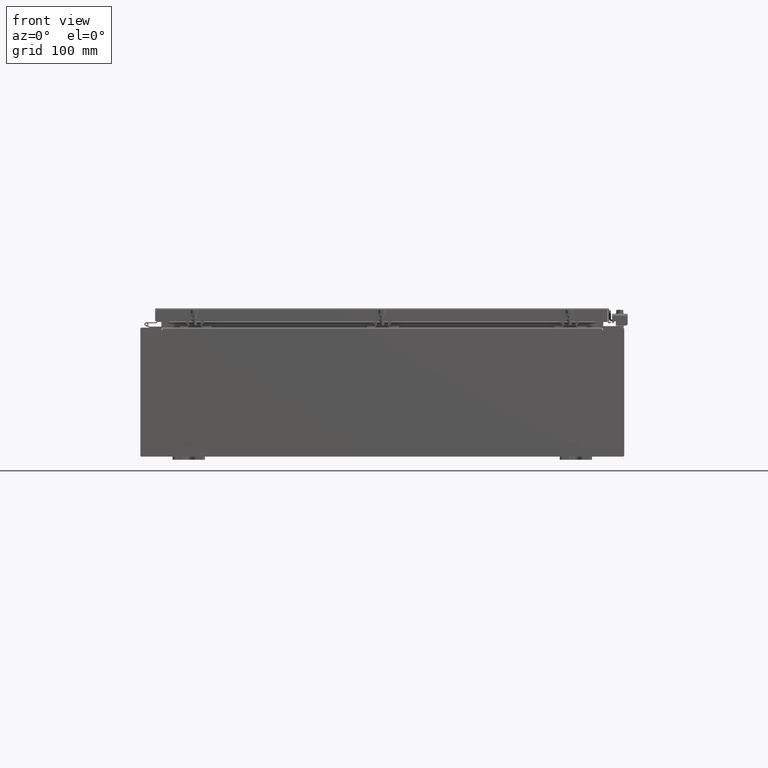
[diagram: clean part render]
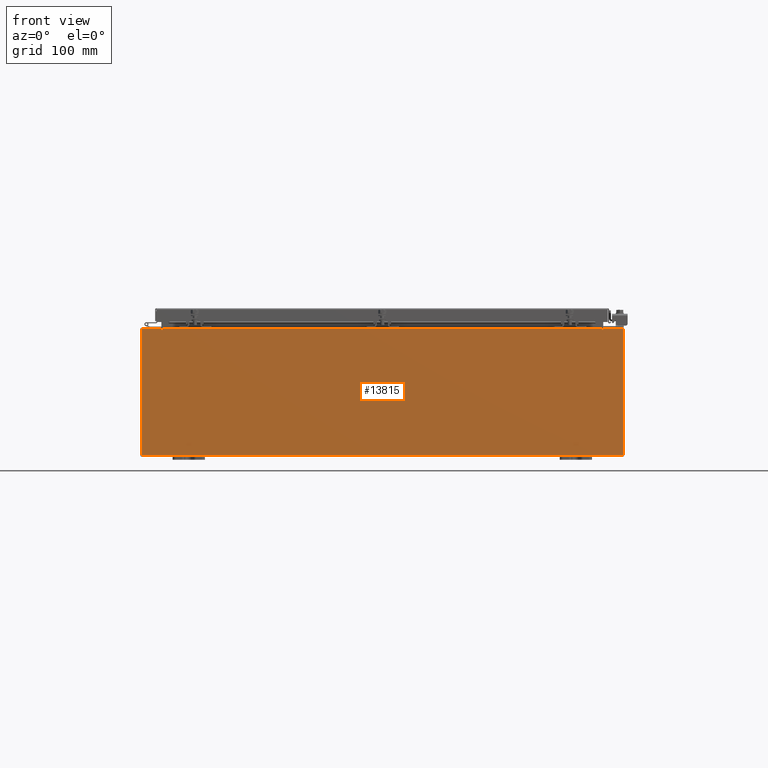
[diagram: same view with one face highlighted and labeled with its STEP entity id]
A machine part, front view. The second image highlights one B-rep face of the part: STEP entity #13815.
In plain terms, the highlighted planar face has unit normal (-0, 1, -0).
Its self-contained STEP definition (entity closure, byte-faithful):
#432 = VERTEX_POINT ( 'NONE', #34813 ) ;
#537 = CARTESIAN_POINT ( 'NONE',  ( 13.63720000000000400, 0.0000000000000000000, 3.874949999999999700 ) ) ;
#1525 = CARTESIAN_POINT ( 'NONE',  ( -13.63719999999999600, -0.0000000000000000000, 0.0000000000000000000 ) ) ;
#1815 = ORIENTED_EDGE ( 'NONE', *, *, #30487, .F. ) ;
#2160 = DIRECTION ( 'NONE',  ( 0.0000000000000000000, -0.0000000000000000000, -1.000000000000000000 ) ) ;
#2575 = LINE ( 'NONE', #10133, #32349 ) ;
#2901 = CARTESIAN_POINT ( 'NONE',  ( -14.92529999999999800, 0.0000000000000000000, 3.925299999999999600 ) ) ;
#3558 = CIRCLE ( 'NONE', #13263, 0.01867499999999949400 ) ;
#3827 = EDGE_CURVE ( 'NONE', #19924, #8920, #6017, .T. ) ;
#4027 = FACE_OUTER_BOUND ( 'NONE', #29703, .T. ) ;
#5618 = VECTOR ( 'NONE', #18746, 39.37007874015748100 ) ;
#6017 = LINE ( 'NONE', #20169, #7898 ) ;
#6046 = VECTOR ( 'NONE', #38392, 39.37007874015748100 ) ;
#6983 = CARTESIAN_POINT ( 'NONE',  ( 13.67455000000000400, 0.0000000000000000000, 3.925299999999999600 ) ) ;
#7187 = DIRECTION ( 'NONE',  ( 1.000000000000000000, 0.0000000000000000000, 0.0000000000000000000 ) ) ;
#7898 = VECTOR ( 'NONE', #15827, 39.37007874015748100 ) ;
#8173 = VECTOR ( 'NONE', #23099, 39.37007874015748100 ) ;
#8356 = CARTESIAN_POINT ( 'NONE',  ( -13.63719999999999800, 1.024442997624098700E-016, 3.912299999999999700 ) ) ;
#8696 = LINE ( 'NONE', #26123, #30517 ) ;
#8920 = VERTEX_POINT ( 'NONE', #13791 ) ;
#9029 = VERTEX_POINT ( 'NONE', #17321 ) ;
#9052 = EDGE_CURVE ( 'NONE', #9029, #26276, #3558, .T. ) ;
#9077 = AXIS2_PLACEMENT_3D ( 'NONE', #11703, #32505, #14671 ) ;
#9332 = EDGE_CURVE ( 'NONE', #10655, #20469, #18868, .T. ) ;
#9841 = EDGE_CURVE ( 'NONE', #17331, #19924, #10951, .T. ) ;
#10133 = CARTESIAN_POINT ( 'NONE',  ( -14.92529999999999800, 0.0000000000000000000, 3.925299999999999600 ) ) ;
#10579 = ORIENTED_EDGE ( 'NONE', *, *, #14504, .T. ) ;
#10655 = VERTEX_POINT ( 'NONE', #6983 ) ;
#10951 = CIRCLE ( 'NONE', #9077, 0.01867499999999949400 ) ;
#11703 = CARTESIAN_POINT ( 'NONE',  ( -13.65587499999999600, 0.0000000000000000000, 3.874949999999999700 ) ) ;
#12123 = DIRECTION ( 'NONE',  ( 0.0000000000000000000, 0.0000000000000000000, -1.000000000000000000 ) ) ;
#12450 = ORIENTED_EDGE ( 'NONE', *, *, #24260, .F. ) ;
#13263 = AXIS2_PLACEMENT_3D ( 'NONE', #24832, #31358, #12123 ) ;
#13663 = CARTESIAN_POINT ( 'NONE',  ( 13.63720000000000400, 0.0000000000000000000, 0.0000000000000000000 ) ) ;
#13724 = ORIENTED_EDGE ( 'NONE', *, *, #30601, .T. ) ;
#13791 = CARTESIAN_POINT ( 'NONE',  ( -13.67454999999999500, 0.0000000000000000000, 3.925299999999999600 ) ) ;
#13815 = ADVANCED_FACE ( 'NONE', ( #4027 ), #37815, .F. ) ;
#13887 = AXIS2_PLACEMENT_3D ( 'NONE', #34698, #19957, #2160 ) ;
#14271 = ORIENTED_EDGE ( 'NONE', *, *, #9841, .F. ) ;
#14318 = DIRECTION ( 'NONE',  ( -0.0000000000000000000, -0.0000000000000000000, 1.000000000000000000 ) ) ;
#14489 = ORIENTED_EDGE ( 'NONE', *, *, #22409, .T. ) ;
#14504 = EDGE_CURVE ( 'NONE', #17136, #28407, #30936, .T. ) ;
#14671 = DIRECTION ( 'NONE',  ( 0.0000000000000000000, 0.0000000000000000000, -1.000000000000000000 ) ) ;
#15827 = DIRECTION ( 'NONE',  ( 0.0000000000000000000, 0.0000000000000000000, 1.000000000000000000 ) ) ;
#16288 = DIRECTION ( 'NONE',  ( 0.0000000000000000000, 0.0000000000000000000, -1.000000000000000000 ) ) ;
#16304 = CARTESIAN_POINT ( 'NONE',  ( 14.92530000000000200, 0.0000000000000000000, -3.925299999999999600 ) ) ;
#16593 = DIRECTION ( 'NONE',  ( 0.0000000000000000000, 0.0000000000000000000, 1.000000000000000000 ) ) ;
#17136 = VERTEX_POINT ( 'NONE', #33864 ) ;
#17168 = CARTESIAN_POINT ( 'NONE',  ( -13.67454999999999500, 0.0000000000000000000, 3.874949999999999700 ) ) ;
#17321 = CARTESIAN_POINT ( 'NONE',  ( 13.67455000000000200, 0.0000000000000000000, 3.874949999999999700 ) ) ;
#17331 = VERTEX_POINT ( 'NONE', #37786 ) ;
#18326 = EDGE_CURVE ( 'NONE', #20469, #20995, #37257, .T. ) ;
#18746 = DIRECTION ( 'NONE',  ( 0.0000000000000000000, 0.0000000000000000000, -1.000000000000000000 ) ) ;
#18868 = LINE ( 'NONE', #2901, #25839 ) ;
#19627 = CARTESIAN_POINT ( 'NONE',  ( 14.92530000000000200, 0.0000000000000000000, 3.925299999999999600 ) ) ;
#19924 = VERTEX_POINT ( 'NONE', #17168 ) ;
#19957 = DIRECTION ( 'NONE',  ( 0.0000000000000000000, -1.000000000000000000, 0.0000000000000000000 ) ) ;
#20069 = ORIENTED_EDGE ( 'NONE', *, *, #3827, .F. ) ;
#20169 = CARTESIAN_POINT ( 'NONE',  ( -13.67454999999999500, -0.0000000000000000000, 0.0000000000000000000 ) ) ;
#20469 = VERTEX_POINT ( 'NONE', #19627 ) ;
#20673 = DIRECTION ( 'NONE',  ( 1.000000000000000000, 0.0000000000000000000, 0.0000000000000000000 ) ) ;
#20677 = VECTOR ( 'NONE', #16593, 39.37007874015748100 ) ;
#20995 = VERTEX_POINT ( 'NONE', #16304 ) ;
#21136 = VECTOR ( 'NONE', #14318, 39.37007874015748100 ) ;
#21156 = CARTESIAN_POINT ( 'NONE',  ( -14.92529999999999800, 0.0000000000000000000, 3.925299999999999600 ) ) ;
#21611 = CARTESIAN_POINT ( 'NONE',  ( 14.92530000000000200, 0.0000000000000000000, 3.925299999999999600 ) ) ;
#21863 = LINE ( 'NONE', #1525, #29775 ) ;
#22248 = ORIENTED_EDGE ( 'NONE', *, *, #30375, .T. ) ;
#22409 = EDGE_CURVE ( 'NONE', #20995, #17136, #29740, .T. ) ;
#23099 = DIRECTION ( 'NONE',  ( 1.000000000000000000, 0.0000000000000000000, 0.0000000000000000000 ) ) ;
#23352 = ORIENTED_EDGE ( 'NONE', *, *, #9332, .T. ) ;
#24260 = EDGE_CURVE ( 'NONE', #10655, #9029, #8696, .T. ) ;
#24832 = CARTESIAN_POINT ( 'NONE',  ( 13.65587500000000200, 0.0000000000000000000, 3.874949999999999700 ) ) ;
#24850 = LINE ( 'NONE', #8356, #8173 ) ;
#25839 = VECTOR ( 'NONE', #20673, 39.37007874015748100 ) ;
#26123 = CARTESIAN_POINT ( 'NONE',  ( 13.67454999999983300, -0.0000000000000000000, -5.935537951421816200E-013 ) ) ;
#26248 = ORIENTED_EDGE ( 'NONE', *, *, #18326, .T. ) ;
#26276 = VERTEX_POINT ( 'NONE', #537 ) ;
#27362 = CARTESIAN_POINT ( 'NONE',  ( 13.63720000000000400, 0.0000000000000000000, 3.912299999999999700 ) ) ;
#27436 = VERTEX_POINT ( 'NONE', #27362 ) ;
#27492 = ORIENTED_EDGE ( 'NONE', *, *, #34048, .F. ) ;
#28407 = VERTEX_POINT ( 'NONE', #21156 ) ;
#29108 = DIRECTION ( 'NONE',  ( -4.340572780400004900E-014, 0.0000000000000000000, -1.000000000000000000 ) ) ;
#29703 = EDGE_LOOP ( 'NONE', ( #20069, #14271, #27492, #13724, #1815, #33504, #12450, #23352, #26248, #14489, #10579, #22248 ) ) ;
#29740 = LINE ( 'NONE', #38266, #6046 ) ;
#29775 = VECTOR ( 'NONE', #16288, 39.37007874015748100 ) ;
#30375 = EDGE_CURVE ( 'NONE', #28407, #8920, #2575, .T. ) ;
#30487 = EDGE_CURVE ( 'NONE', #26276, #27436, #36532, .T. ) ;
#30517 = VECTOR ( 'NONE', #29108, 39.37007874015748100 ) ;
#30601 = EDGE_CURVE ( 'NONE', #432, #27436, #24850, .T. ) ;
#30936 = LINE ( 'NONE', #35152, #21136 ) ;
#31358 = DIRECTION ( 'NONE',  ( -0.0000000000000000000, 1.000000000000000000, -0.0000000000000000000 ) ) ;
#32349 = VECTOR ( 'NONE', #7187, 39.37007874015748100 ) ;
#32505 = DIRECTION ( 'NONE',  ( -0.0000000000000000000, 1.000000000000000000, -0.0000000000000000000 ) ) ;
#33504 = ORIENTED_EDGE ( 'NONE', *, *, #9052, .F. ) ;
#33864 = CARTESIAN_POINT ( 'NONE',  ( -14.92529999999999800, 0.0000000000000000000, -3.925299999999999600 ) ) ;
#34048 = EDGE_CURVE ( 'NONE', #432, #17331, #21863, .T. ) ;
#34698 = CARTESIAN_POINT ( 'NONE',  ( 0.0000000000000000000, 0.0000000000000000000, 0.0000000000000000000 ) ) ;
#34813 = CARTESIAN_POINT ( 'NONE',  ( -13.63719999999999600, 1.024442997624098700E-016, 3.912299999999999700 ) ) ;
#35152 = CARTESIAN_POINT ( 'NONE',  ( -14.92529999999999800, 0.0000000000000000000, 3.925299999999999600 ) ) ;
#36532 = LINE ( 'NONE', #13663, #20677 ) ;
#37257 = LINE ( 'NONE', #21611, #5618 ) ;
#37786 = CARTESIAN_POINT ( 'NONE',  ( -13.63719999999999600, -0.0000000000000000000, 3.874949999999999700 ) ) ;
#37815 = PLANE ( 'NONE',  #13887 ) ;
#38266 = CARTESIAN_POINT ( 'NONE',  ( -14.92529999999999800, 0.0000000000000000000, -3.925299999999999600 ) ) ;
#38392 = DIRECTION ( 'NONE',  ( -1.000000000000000000, -0.0000000000000000000, -0.0000000000000000000 ) ) ;